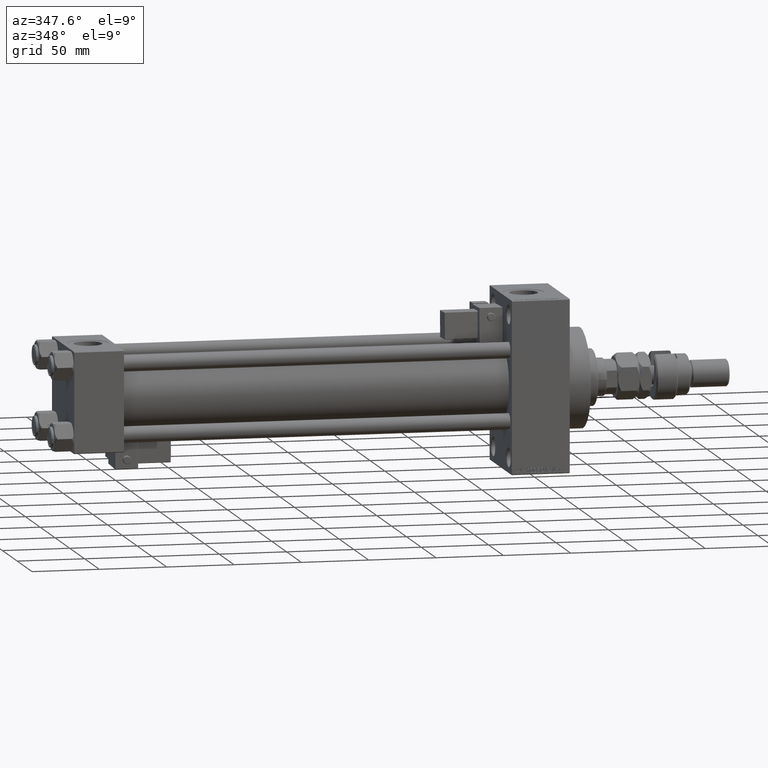
[diagram: clean part render]
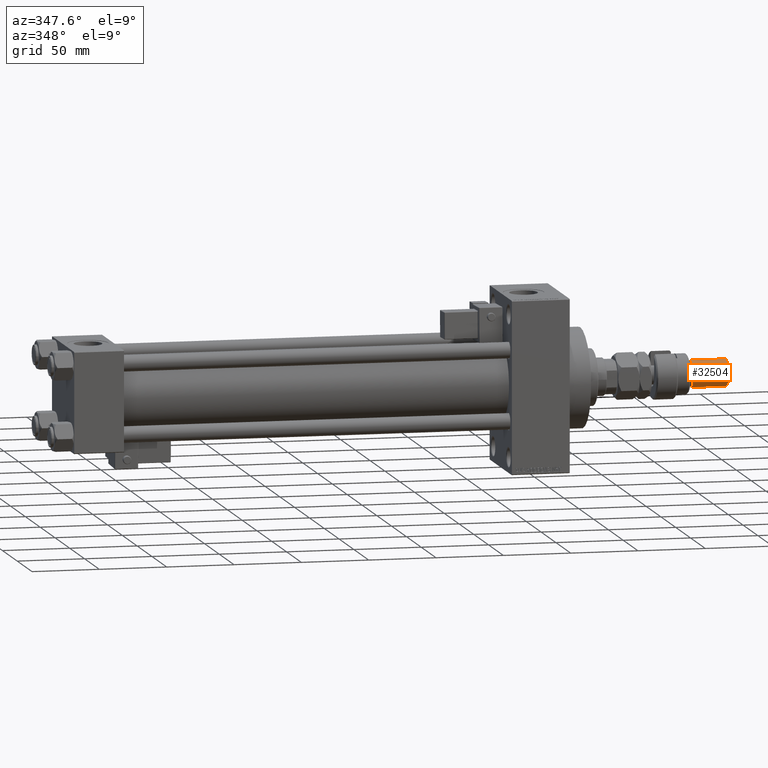
[diagram: same view with one face highlighted and labeled with its STEP entity id]
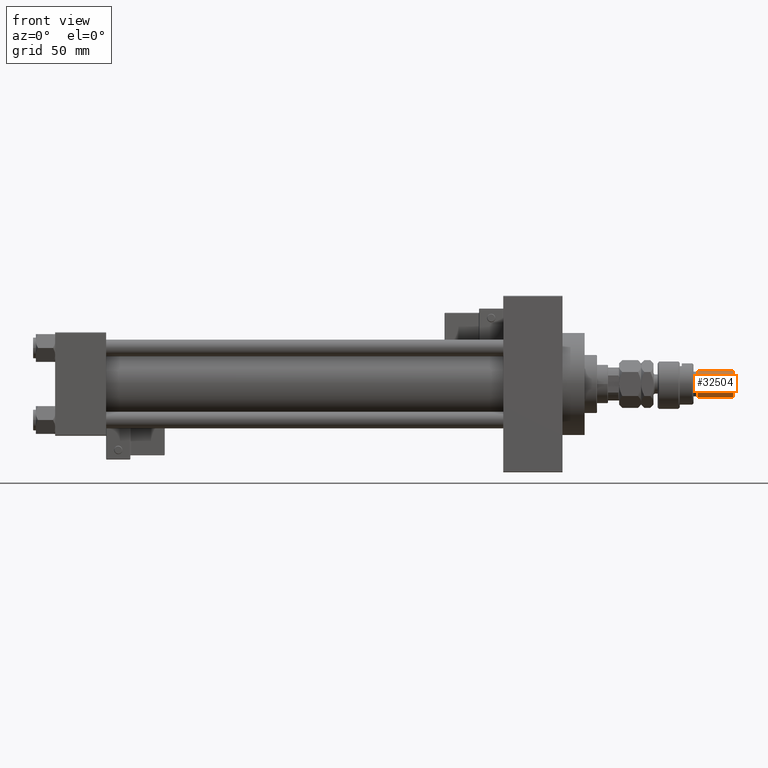
[diagram: same view with one face highlighted and labeled with its STEP entity id]
A machine part, auxiliary view. The second image highlights one B-rep face of the part: STEP entity #32504.
A second angle (front view) of the same face is appended — the face is thin or edge-on in the first view.
In plain terms, the highlighted cylindrical surface (edge-blend (fillet) strip) has radius 10 mm, axis along (-1, -0, 0).
Its self-contained STEP definition (entity closure, byte-faithful):
#68 = ORIENTED_EDGE ( 'NONE', *, *, #26723, .F. ) ;
#1451 = CIRCLE ( 'NONE', #30992, 10.00000000000000000 ) ;
#1909 = EDGE_CURVE ( 'NONE', #42601, #15925, #1451, .T. ) ;
#2382 = LINE ( 'NONE', #26417, #24320 ) ;
#2586 = FACE_OUTER_BOUND ( 'NONE', #23792, .T. ) ;
#4428 = ORIENTED_EDGE ( 'NONE', *, *, #27045, .T. ) ;
#5154 = DIRECTION ( 'NONE',  ( 1.000000000000000000, 0.000000000000000000, 0.000000000000000000 ) ) ;
#5667 = EDGE_CURVE ( 'NONE', #15925, #25981, #2382, .T. ) ;
#10059 = CARTESIAN_POINT ( 'NONE',  ( 10.00000000000000000, 1.224646799147353256E-15, 54.99999999999998579 ) ) ;
#11945 = CARTESIAN_POINT ( 'NONE',  ( 10.00000000000000000, 1.224646799147353256E-15, 29.00000000000000711 ) ) ;
#15925 = VERTEX_POINT ( 'NONE', #43154 ) ;
#17929 = AXIS2_PLACEMENT_3D ( 'NONE', #47248, #18938, #27157 ) ;
#18544 = VECTOR ( 'NONE', #47531, 1000.000000000000000 ) ;
#18678 = CYLINDRICAL_SURFACE ( 'NONE', #17929, 10.00000000000000000 ) ;
#18938 = DIRECTION ( 'NONE',  ( -0.000000000000000000, -0.000000000000000000, -1.000000000000000000 ) ) ;
#18959 = LINE ( 'NONE', #19490, #18544 ) ;
#19490 = CARTESIAN_POINT ( 'NONE',  ( 10.00000000000000000, 1.224646799147353256E-15, 56.00000000000000711 ) ) ;
#19513 = DIRECTION ( 'NONE',  ( 0.000000000000000000, 0.000000000000000000, -1.000000000000000000 ) ) ;
#20067 = ORIENTED_EDGE ( 'NONE', *, *, #1909, .T. ) ;
#23500 = CARTESIAN_POINT ( 'NONE',  ( 0.000000000000000000, 0.000000000000000000, 54.99999999999998579 ) ) ;
#23792 = EDGE_LOOP ( 'NONE', ( #68, #20067, #45980, #4428 ) ) ;
#24320 = VECTOR ( 'NONE', #34864, 1000.000000000000000 ) ;
#24705 = CARTESIAN_POINT ( 'NONE',  ( 0.000000000000000000, 0.000000000000000000, 29.00000000000000711 ) ) ;
#24744 = CARTESIAN_POINT ( 'NONE',  ( -10.00000000000000000, 0.000000000000000000, 29.00000000000000711 ) ) ;
#25981 = VERTEX_POINT ( 'NONE', #24744 ) ;
#26417 = CARTESIAN_POINT ( 'NONE',  ( -10.00000000000000000, 0.000000000000000000, 56.00000000000000711 ) ) ;
#26723 = EDGE_CURVE ( 'NONE', #42601, #34225, #18959, .T. ) ;
#27045 = EDGE_CURVE ( 'NONE', #25981, #34225, #49024, .T. ) ;
#27157 = DIRECTION ( 'NONE',  ( -1.000000000000000000, 0.000000000000000000, 0.000000000000000000 ) ) ;
#30992 = AXIS2_PLACEMENT_3D ( 'NONE', #23500, #19513, #35649 ) ;
#32504 = ADVANCED_FACE ( 'NONE', ( #2586 ), #18678, .T. ) ;
#32917 = AXIS2_PLACEMENT_3D ( 'NONE', #24705, #33140, #5154 ) ;
#33140 = DIRECTION ( 'NONE',  ( -0.000000000000000000, -0.000000000000000000, 1.000000000000000000 ) ) ;
#34225 = VERTEX_POINT ( 'NONE', #11945 ) ;
#34864 = DIRECTION ( 'NONE',  ( -0.000000000000000000, -0.000000000000000000, -1.000000000000000000 ) ) ;
#35649 = DIRECTION ( 'NONE',  ( 1.000000000000000000, 0.000000000000000000, 0.000000000000000000 ) ) ;
#42601 = VERTEX_POINT ( 'NONE', #10059 ) ;
#43154 = CARTESIAN_POINT ( 'NONE',  ( -10.00000000000000000, 0.000000000000000000, 54.99999999999998579 ) ) ;
#45980 = ORIENTED_EDGE ( 'NONE', *, *, #5667, .T. ) ;
#47248 = CARTESIAN_POINT ( 'NONE',  ( 0.000000000000000000, 0.000000000000000000, 56.00000000000000711 ) ) ;
#47531 = DIRECTION ( 'NONE',  ( -0.000000000000000000, -0.000000000000000000, -1.000000000000000000 ) ) ;
#49024 = CIRCLE ( 'NONE', #32917, 10.00000000000000000 ) ;